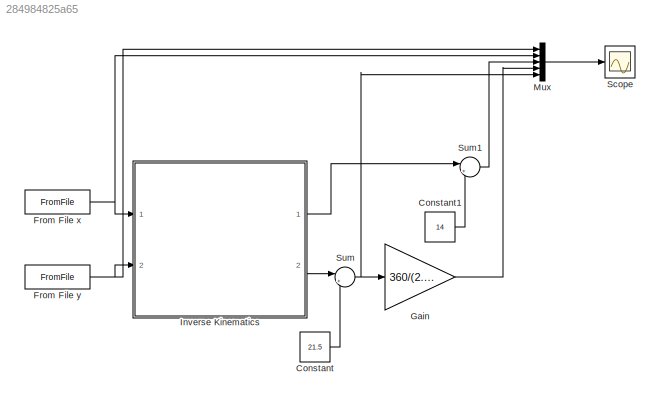
MODEL slx_284984825a65
KIND model
CONFIG AbsTol = auto
CONFIG EnableMultiTasking = off
CONFIG FixedStep = auto
CONFIG MaxStep = auto
CONFIG MinStep = auto
CONFIG RelTol = 1e-3
CONFIG SampleTimeConstraint = Unconstrained
CONFIG SolverName = VariableStepAuto
CONFIG StartTime = 0.0
CONFIG StopTime = 50.0
BLOCK [Constant] Constant
  Value = 21.5
BLOCK [Constant] Constant1
  Value = 14
BLOCK [FromFile] From File x
  FileName = matrix_x.mat
  SampleTime = 0
BLOCK [FromFile] From File y
  FileName = matrix_y.mat
  SampleTime = 0
BLOCK [Gain] Gain
  Gain = 360/(2.24*pi)
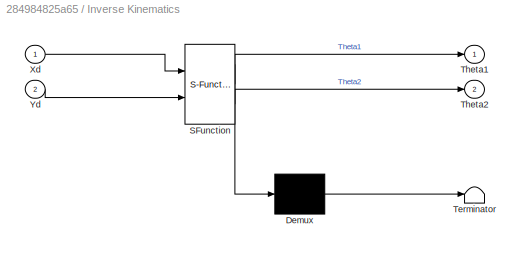
BLOCK [SubSystem] Inverse Kinematics
  ErrorFcn = Stateflow.Translate.translate
  PermitHierarchicalResolution = ExplicitOnly
  Ports = [2, 2]
  RequestExecContextInheritance = off
  SFBlockType = MATLAB Function
  TreatAsAtomicUnit = on
BLOCK [Demux] Inverse Kinematics/ Demux 
  Outputs = 1
  Ports = [1, 1]
BLOCK [S-Function] Inverse Kinematics/ SFunction 
  EnableBusSupport = on
  FunctionName = sf_sfun
  PortCounts = [2 3]
  Ports = [2, 3]
  SFcnIsStateOwnerBlock = off
  SFunctionDeploymentMode = off
  Tag = Stateflow S-Function 1
BLOCK [Terminator] Inverse Kinematics/ Terminator 
BLOCK [Outport] Inverse Kinematics/Theta1
  VectorParamsAs1DForOutWhenUnconnected = off
BLOCK [Outport] Inverse Kinematics/Theta2
  Port = 2
  VectorParamsAs1DForOutWhenUnconnected = off
BLOCK [Inport] Inverse Kinematics/Xd
BLOCK [Inport] Inverse Kinematics/Yd
  Port = 2
BLOCK [Mux] Mux
  DisplayOption = bar
  Inputs = 5
  Ports = [5, 1]
BLOCK [Scope] Scope
  Floating = off
  NumInputPorts = 1
  Ports = [1]
  ScopeSpecificationString = Simulink.scopes.TimeScopeBlockCfg('CurrentConfiguration', extmgr.ConfigurationSet(extmgr.Configuration('Core','General UI',true),extmgr.Configuration('Core','Source UI',true),extmgr.Configuration('Sources','WiredSimulink',true),extmgr.Configuration('Visuals','Time Domain',true,'SerializedDisplays',{struct('MinYLimReal','-621.86031','MaxYLimReal','513.94718','YLabelReal','','MinYLimMag',' 0.00000',...<+1590ch>
BLOCK [Sum] Sum
  Inputs = |++
  Ports = [2, 1]
BLOCK [Sum] Sum1
  Inputs = |++
  Ports = [2, 1]
LINE Constant1:1 -> Sum1:2
LINE Constant:1 -> Sum:2
NET From File x:1 -> Inverse Kinematics:1, Mux:2
NET From File y:1 -> Inverse Kinematics:2, Mux:1
LINE Gain:1 -> Mux:4
LINE Inverse Kinematics:1 -> Sum1:1
LINE Inverse Kinematics:2 -> Sum:1
LINE Mux:1 -> Scope:1
LINE Sum1:1 -> Mux:3
NET Sum:1 -> Gain:1, Mux:5
note: NET lines group one-source signal fan-out (src -> all destinations, sorted); 1:1 wires keep LINE
CHART Inverse Kinematics states=1 transitions=1
  STATE_LABEL 'eML_blk_kernel()'
  STATE_LABEL 'SCRIPT:\nfunction [Theta1,Theta2] = InverseKinematics(Xd,Yd)\nl1 = 2.25;\nl2 = 21.5;\nq1r = (atan2((sqrt(abs(-l1^2+Xd^2+Yd^2))+Yd),(l1+Xd)));\nTheta1 = rad2deg(q1r);\nTheta2 = -sin(q1r)*Xd +cos(q1r)*Yd-l2;'
CHART  states=0 transitions=0
